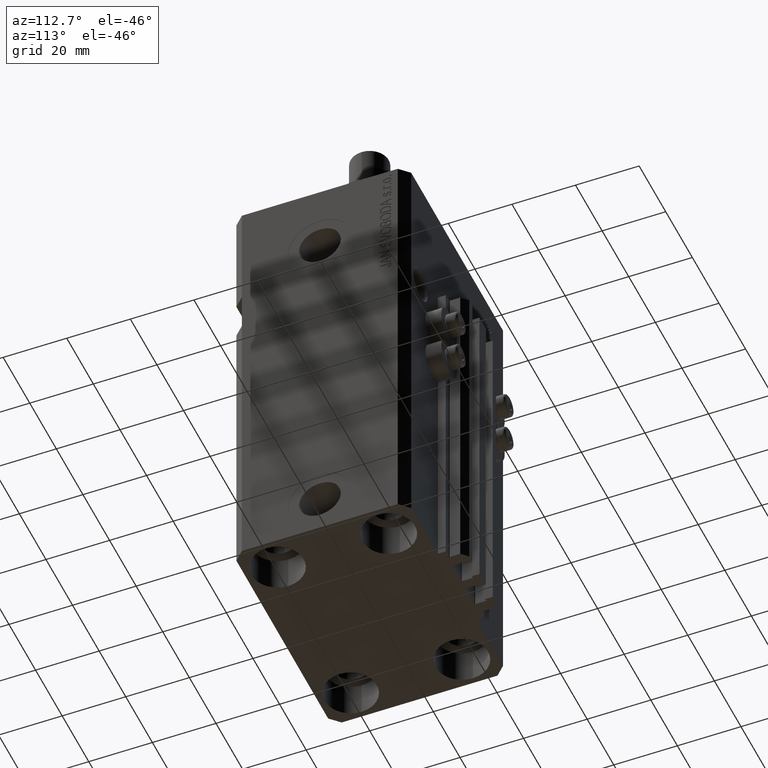
[diagram: clean part render]
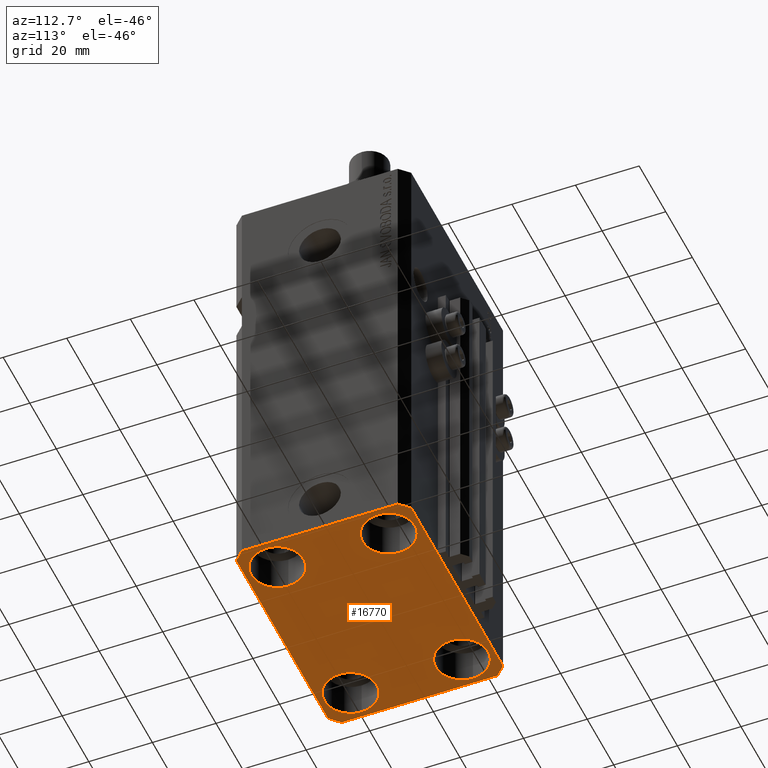
[diagram: same view with one face highlighted and labeled with its STEP entity id]
A machine part, auxiliary view. The second image highlights one B-rep face of the part: STEP entity #16770.
In plain terms, the highlighted planar face has unit normal (0, 0, 1).
Its self-contained STEP definition (entity closure, byte-faithful):
#1036 = DIRECTION ( 'NONE',  ( -0.000000000000000000, -0.000000000000000000, 1.000000000000000000 ) ) ;
#1219 = VERTEX_POINT ( 'NONE', #13828 ) ;
#1230 = CARTESIAN_POINT ( 'NONE',  ( -27.50000000000000355, -17.50000000000000000, -140.0000000000000000 ) ) ;
#1497 = CARTESIAN_POINT ( 'NONE',  ( 27.49999999999999645, 17.50000000000001066, -140.0000000000000000 ) ) ;
#1605 = EDGE_CURVE ( 'NONE', #6017, #21020, #35765, .T. ) ;
#1787 = EDGE_CURVE ( 'NONE', #41505, #1219, #21536, .T. ) ;
#1866 = ORIENTED_EDGE ( 'NONE', *, *, #22145, .T. ) ;
#1876 = EDGE_CURVE ( 'NONE', #21020, #40502, #16111, .T. ) ;
#2399 = CARTESIAN_POINT ( 'NONE',  ( 27.49999999999999645, 17.50000000000001066, -140.0000000000000000 ) ) ;
#2589 = DIRECTION ( 'NONE',  ( 1.000000000000000000, 0.000000000000000000, 0.000000000000000000 ) ) ;
#2820 = ORIENTED_EDGE ( 'NONE', *, *, #47802, .T. ) ;
#3734 = DIRECTION ( 'NONE',  ( -1.000000000000000000, 0.000000000000000000, 0.000000000000000000 ) ) ;
#3814 = FACE_BOUND ( 'NONE', #37071, .T. ) ;
#4099 = ORIENTED_EDGE ( 'NONE', *, *, #28242, .T. ) ;
#4324 = VECTOR ( 'NONE', #13965, 1000.000000000000000 ) ;
#4481 = ORIENTED_EDGE ( 'NONE', *, *, #22813, .F. ) ;
#4642 = DIRECTION ( 'NONE',  ( 0.7071067811865474617, 0.7071067811865474617, 0.000000000000000000 ) ) ;
#5270 = CIRCLE ( 'NONE', #39727, 8.249999999999992895 ) ;
#5354 = CARTESIAN_POINT ( 'NONE',  ( 27.50000000000000355, -17.50000000000000000, -140.0000000000000000 ) ) ;
#5612 = CARTESIAN_POINT ( 'NONE',  ( -37.49999999999999289, -24.50000000000000000, -140.0000000000000000 ) ) ;
#6017 = VERTEX_POINT ( 'NONE', #6428 ) ;
#6192 = CIRCLE ( 'NONE', #39002, 8.249999999999992895 ) ;
#6428 = CARTESIAN_POINT ( 'NONE',  ( -34.49999999999998579, -27.49999999999999645, -140.0000000000000000 ) ) ;
#6499 = VECTOR ( 'NONE', #3734, 1000.000000000000000 ) ;
#6956 = CARTESIAN_POINT ( 'NONE',  ( 35.75000000000000711, -17.50000000000000000, -140.0000000000000000 ) ) ;
#6993 = DIRECTION ( 'NONE',  ( -0.000000000000000000, -0.000000000000000000, 1.000000000000000000 ) ) ;
#7207 = DIRECTION ( 'NONE',  ( 1.076236605503979380E-14, 1.000000000000000000, 0.000000000000000000 ) ) ;
#7233 = VECTOR ( 'NONE', #14263, 1000.000000000000000 ) ;
#7494 = DIRECTION ( 'NONE',  ( 1.000000000000000000, 0.000000000000000000, -0.000000000000000000 ) ) ;
#7819 = AXIS2_PLACEMENT_3D ( 'NONE', #27234, #1036, #15465 ) ;
#9158 = EDGE_LOOP ( 'NONE', ( #2820, #4099 ) ) ;
#10067 = CARTESIAN_POINT ( 'NONE',  ( -34.49999999999998579, -27.49999999999999645, -140.0000000000000000 ) ) ;
#11145 = CARTESIAN_POINT ( 'NONE',  ( 37.50000000000051870, 24.49999999999995381, -140.0000000000000000 ) ) ;
#11169 = PLANE ( 'NONE',  #31161 ) ;
#11382 = ORIENTED_EDGE ( 'NONE', *, *, #45951, .F. ) ;
#12463 = ORIENTED_EDGE ( 'NONE', *, *, #33889, .F. ) ;
#12510 = CIRCLE ( 'NONE', #17176, 8.250000000000000000 ) ;
#12752 = VERTEX_POINT ( 'NONE', #26531 ) ;
#13828 = CARTESIAN_POINT ( 'NONE',  ( 19.25000000000000000, -17.50000000000000000, -140.0000000000000000 ) ) ;
#13965 = DIRECTION ( 'NONE',  ( 1.000000000000000000, 0.000000000000000000, 0.000000000000000000 ) ) ;
#14217 = EDGE_CURVE ( 'NONE', #23700, #32665, #21051, .T. ) ;
#14263 = DIRECTION ( 'NONE',  ( 0.000000000000000000, -1.000000000000000000, 0.000000000000000000 ) ) ;
#14291 = CARTESIAN_POINT ( 'NONE',  ( 37.49999999999999289, -24.50000000000000000, -140.0000000000000000 ) ) ;
#14433 = DIRECTION ( 'NONE',  ( -0.000000000000000000, -0.000000000000000000, 1.000000000000000000 ) ) ;
#14793 = VERTEX_POINT ( 'NONE', #11145 ) ;
#14795 = VECTOR ( 'NONE', #41425, 1000.000000000000114 ) ;
#15465 = DIRECTION ( 'NONE',  ( 1.000000000000000000, 0.000000000000000000, 0.000000000000000000 ) ) ;
#16111 = LINE ( 'NONE', #27412, #46588 ) ;
#16770 = ADVANCED_FACE ( 'NONE', ( #3814, #40306, #29547, #36396, #21450 ), #11169, .F. ) ;
#17176 = AXIS2_PLACEMENT_3D ( 'NONE', #1230, #34549, #26461 ) ;
#17187 = CIRCLE ( 'NONE', #7819, 8.250000000000000000 ) ;
#18347 = DIRECTION ( 'NONE',  ( 1.000000000000000000, 0.000000000000000000, 0.000000000000000000 ) ) ;
#18760 = CARTESIAN_POINT ( 'NONE',  ( -37.49999999999999289, -24.50000000000000000, -140.0000000000000000 ) ) ;
#19101 = EDGE_CURVE ( 'NONE', #23910, #20271, #5270, .T. ) ;
#19364 = DIRECTION ( 'NONE',  ( 1.000000000000000000, 0.000000000000000000, 0.000000000000000000 ) ) ;
#19543 = CIRCLE ( 'NONE', #46938, 8.250000000000000000 ) ;
#20271 = VERTEX_POINT ( 'NONE', #35617 ) ;
#20345 = VECTOR ( 'NONE', #7207, 1000.000000000000000 ) ;
#20420 = CIRCLE ( 'NONE', #21237, 8.250000000000000000 ) ;
#20884 = VECTOR ( 'NONE', #43596, 1000.000000000000000 ) ;
#21020 = VERTEX_POINT ( 'NONE', #44300 ) ;
#21051 = LINE ( 'NONE', #38939, #20884 ) ;
#21237 = AXIS2_PLACEMENT_3D ( 'NONE', #40520, #6993, #29519 ) ;
#21450 = FACE_OUTER_BOUND ( 'NONE', #27152, .T. ) ;
#21536 = CIRCLE ( 'NONE', #31693, 8.250000000000000000 ) ;
#21564 = ORIENTED_EDGE ( 'NONE', *, *, #14217, .F. ) ;
#21951 = CIRCLE ( 'NONE', #23435, 8.250000000000000000 ) ;
#22145 = EDGE_CURVE ( 'NONE', #20271, #23910, #6192, .T. ) ;
#22315 = CARTESIAN_POINT ( 'NONE',  ( -37.49999999999999289, 24.50000000000000000, -140.0000000000000000 ) ) ;
#22341 = EDGE_CURVE ( 'NONE', #43742, #6017, #27342, .T. ) ;
#22813 = EDGE_CURVE ( 'NONE', #14793, #12752, #45358, .T. ) ;
#23416 = DIRECTION ( 'NONE',  ( 0.7071067811865483499, -0.7071067811865466846, 0.000000000000000000 ) ) ;
#23435 = AXIS2_PLACEMENT_3D ( 'NONE', #5354, #41424, #35228 ) ;
#23596 = VERTEX_POINT ( 'NONE', #48145 ) ;
#23700 = VERTEX_POINT ( 'NONE', #24650 ) ;
#23910 = VERTEX_POINT ( 'NONE', #45693 ) ;
#24056 = ORIENTED_EDGE ( 'NONE', *, *, #19101, .T. ) ;
#24125 = EDGE_CURVE ( 'NONE', #44214, #47900, #12510, .T. ) ;
#24650 = CARTESIAN_POINT ( 'NONE',  ( -34.49999999999999289, 27.50000000000000000, -140.0000000000000000 ) ) ;
#26252 = ORIENTED_EDGE ( 'NONE', *, *, #48192, .T. ) ;
#26461 = DIRECTION ( 'NONE',  ( 1.000000000000000000, 0.000000000000000000, 0.000000000000000000 ) ) ;
#26531 = CARTESIAN_POINT ( 'NONE',  ( 34.50000000000056843, 27.50000000000000000, -140.0000000000000000 ) ) ;
#26682 = CARTESIAN_POINT ( 'NONE',  ( -35.75000000000000711, 17.50000000000000000, -140.0000000000000000 ) ) ;
#27152 = EDGE_LOOP ( 'NONE', ( #12463, #4481, #11382, #36973, #45862, #40893, #27707, #21564 ) ) ;
#27234 = CARTESIAN_POINT ( 'NONE',  ( -27.50000000000000355, -17.50000000000000000, -140.0000000000000000 ) ) ;
#27300 = CARTESIAN_POINT ( 'NONE',  ( -19.25000000000000355, -17.50000000000000000, -140.0000000000000000 ) ) ;
#27342 = LINE ( 'NONE', #18760, #34368 ) ;
#27412 = CARTESIAN_POINT ( 'NONE',  ( 34.49999999999999289, -27.49999999999999645, -140.0000000000000000 ) ) ;
#27707 = ORIENTED_EDGE ( 'NONE', *, *, #33017, .F. ) ;
#28242 = EDGE_CURVE ( 'NONE', #23596, #36145, #20420, .T. ) ;
#28905 = CARTESIAN_POINT ( 'NONE',  ( 37.49999999999999289, -24.50000000000000000, -140.0000000000000000 ) ) ;
#29462 = LINE ( 'NONE', #22315, #7233 ) ;
#29492 = LINE ( 'NONE', #14291, #20345 ) ;
#29519 = DIRECTION ( 'NONE',  ( 1.000000000000000000, 0.000000000000000000, 0.000000000000000000 ) ) ;
#29547 = FACE_BOUND ( 'NONE', #34020, .T. ) ;
#30961 = CARTESIAN_POINT ( 'NONE',  ( -35.75000000000000711, -17.50000000000000000, -140.0000000000000000 ) ) ;
#31161 = AXIS2_PLACEMENT_3D ( 'NONE', #37110, #41024, #7494 ) ;
#31693 = AXIS2_PLACEMENT_3D ( 'NONE', #48237, #14433, #18347 ) ;
#31879 = ORIENTED_EDGE ( 'NONE', *, *, #24125, .T. ) ;
#32034 = DIRECTION ( 'NONE',  ( -0.000000000000000000, -0.000000000000000000, 1.000000000000000000 ) ) ;
#32665 = VERTEX_POINT ( 'NONE', #47647 ) ;
#32704 = DIRECTION ( 'NONE',  ( -0.000000000000000000, -0.000000000000000000, 1.000000000000000000 ) ) ;
#33017 = EDGE_CURVE ( 'NONE', #32665, #43742, #29462, .T. ) ;
#33889 = EDGE_CURVE ( 'NONE', #12752, #23700, #37266, .T. ) ;
#34020 = EDGE_LOOP ( 'NONE', ( #24056, #1866 ) ) ;
#34125 = EDGE_LOOP ( 'NONE', ( #37872, #39332 ) ) ;
#34368 = VECTOR ( 'NONE', #23416, 1000.000000000000000 ) ;
#34549 = DIRECTION ( 'NONE',  ( -0.000000000000000000, -0.000000000000000000, 1.000000000000000000 ) ) ;
#35228 = DIRECTION ( 'NONE',  ( 1.000000000000000000, 0.000000000000000000, 0.000000000000000000 ) ) ;
#35617 = CARTESIAN_POINT ( 'NONE',  ( 35.74999999999999289, 17.50000000000001066, -140.0000000000000000 ) ) ;
#35765 = LINE ( 'NONE', #10067, #4324 ) ;
#35885 = CARTESIAN_POINT ( 'NONE',  ( -27.50000000000000355, 17.50000000000000000, -140.0000000000000000 ) ) ;
#36145 = VERTEX_POINT ( 'NONE', #26682 ) ;
#36396 = FACE_BOUND ( 'NONE', #9158, .T. ) ;
#36558 = CARTESIAN_POINT ( 'NONE',  ( 34.50000000000056843, 27.50000000000000000, -140.0000000000000000 ) ) ;
#36973 = ORIENTED_EDGE ( 'NONE', *, *, #1876, .F. ) ;
#37071 = EDGE_LOOP ( 'NONE', ( #26252, #31879 ) ) ;
#37110 = CARTESIAN_POINT ( 'NONE',  ( 0.000000000000000000, 0.000000000000000000, -140.0000000000000000 ) ) ;
#37266 = LINE ( 'NONE', #36558, #6499 ) ;
#37872 = ORIENTED_EDGE ( 'NONE', *, *, #47385, .T. ) ;
#38939 = CARTESIAN_POINT ( 'NONE',  ( -34.49999999999999289, 27.50000000000000000, -140.0000000000000000 ) ) ;
#39002 = AXIS2_PLACEMENT_3D ( 'NONE', #2399, #32034, #46978 ) ;
#39332 = ORIENTED_EDGE ( 'NONE', *, *, #1787, .T. ) ;
#39727 = AXIS2_PLACEMENT_3D ( 'NONE', #1497, #41900, #19364 ) ;
#40306 = FACE_BOUND ( 'NONE', #34125, .T. ) ;
#40502 = VERTEX_POINT ( 'NONE', #28905 ) ;
#40520 = CARTESIAN_POINT ( 'NONE',  ( -27.50000000000000355, 17.50000000000000000, -140.0000000000000000 ) ) ;
#40893 = ORIENTED_EDGE ( 'NONE', *, *, #22341, .F. ) ;
#41024 = DIRECTION ( 'NONE',  ( 0.000000000000000000, 0.000000000000000000, 1.000000000000000000 ) ) ;
#41424 = DIRECTION ( 'NONE',  ( -0.000000000000000000, -0.000000000000000000, 1.000000000000000000 ) ) ;
#41425 = DIRECTION ( 'NONE',  ( -0.7071067811865356934, 0.7071067811865594521, 0.000000000000000000 ) ) ;
#41505 = VERTEX_POINT ( 'NONE', #6956 ) ;
#41900 = DIRECTION ( 'NONE',  ( -0.000000000000000000, -0.000000000000000000, 1.000000000000000000 ) ) ;
#41904 = CARTESIAN_POINT ( 'NONE',  ( 37.50000000000051870, 24.49999999999995381, -140.0000000000000000 ) ) ;
#43596 = DIRECTION ( 'NONE',  ( -0.7071067811865471286, -0.7071067811865479058, 0.000000000000000000 ) ) ;
#43742 = VERTEX_POINT ( 'NONE', #5612 ) ;
#44214 = VERTEX_POINT ( 'NONE', #27300 ) ;
#44300 = CARTESIAN_POINT ( 'NONE',  ( 34.49999999999999289, -27.49999999999999645, -140.0000000000000000 ) ) ;
#45358 = LINE ( 'NONE', #41904, #14795 ) ;
#45693 = CARTESIAN_POINT ( 'NONE',  ( 19.25000000000000000, 17.50000000000001066, -140.0000000000000000 ) ) ;
#45862 = ORIENTED_EDGE ( 'NONE', *, *, #1605, .F. ) ;
#45951 = EDGE_CURVE ( 'NONE', #40502, #14793, #29492, .T. ) ;
#46588 = VECTOR ( 'NONE', #4642, 1000.000000000000114 ) ;
#46938 = AXIS2_PLACEMENT_3D ( 'NONE', #35885, #32704, #2589 ) ;
#46978 = DIRECTION ( 'NONE',  ( 1.000000000000000000, 0.000000000000000000, 0.000000000000000000 ) ) ;
#47385 = EDGE_CURVE ( 'NONE', #1219, #41505, #21951, .T. ) ;
#47647 = CARTESIAN_POINT ( 'NONE',  ( -37.49999999999999289, 24.50000000000000000, -140.0000000000000000 ) ) ;
#47802 = EDGE_CURVE ( 'NONE', #36145, #23596, #19543, .T. ) ;
#47900 = VERTEX_POINT ( 'NONE', #30961 ) ;
#48145 = CARTESIAN_POINT ( 'NONE',  ( -19.25000000000000355, 17.50000000000000000, -140.0000000000000000 ) ) ;
#48192 = EDGE_CURVE ( 'NONE', #47900, #44214, #17187, .T. ) ;
#48237 = CARTESIAN_POINT ( 'NONE',  ( 27.50000000000000355, -17.50000000000000000, -140.0000000000000000 ) ) ;